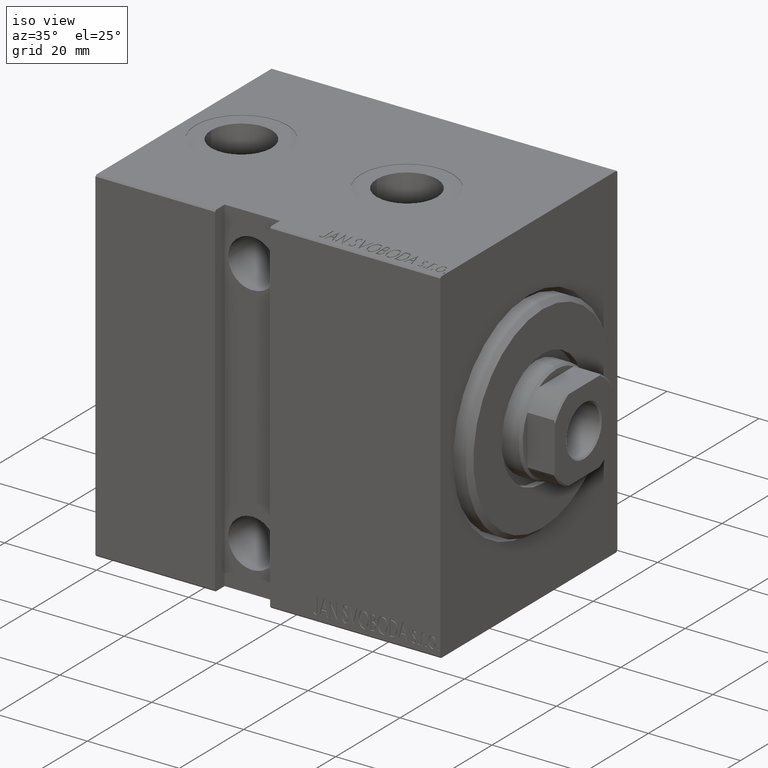
[diagram: clean part render]
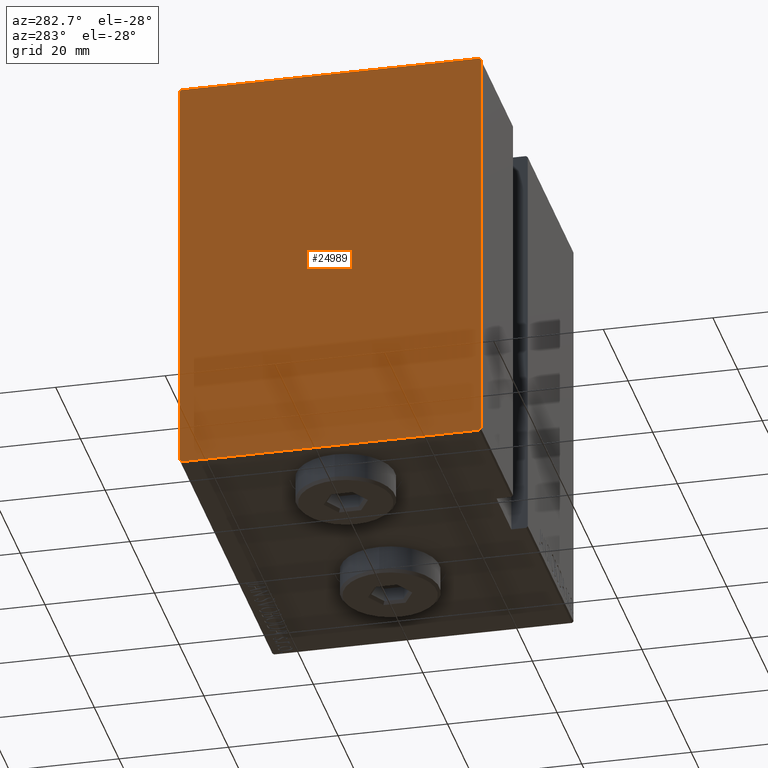
[diagram: tour spotlight — one face highlighted and labeled with its STEP entity id]
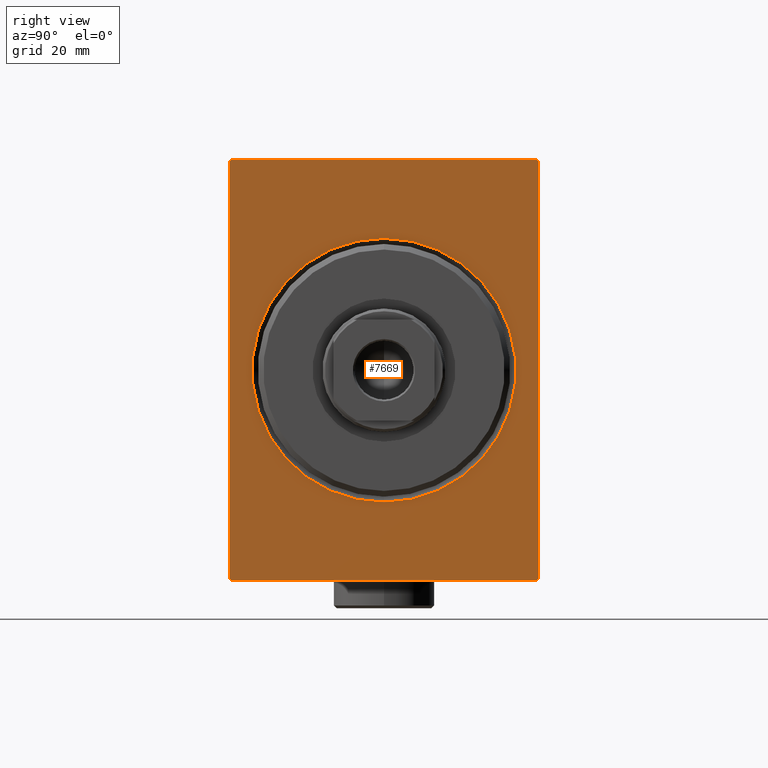
[diagram: tour spotlight — one face highlighted and labeled with its STEP entity id]
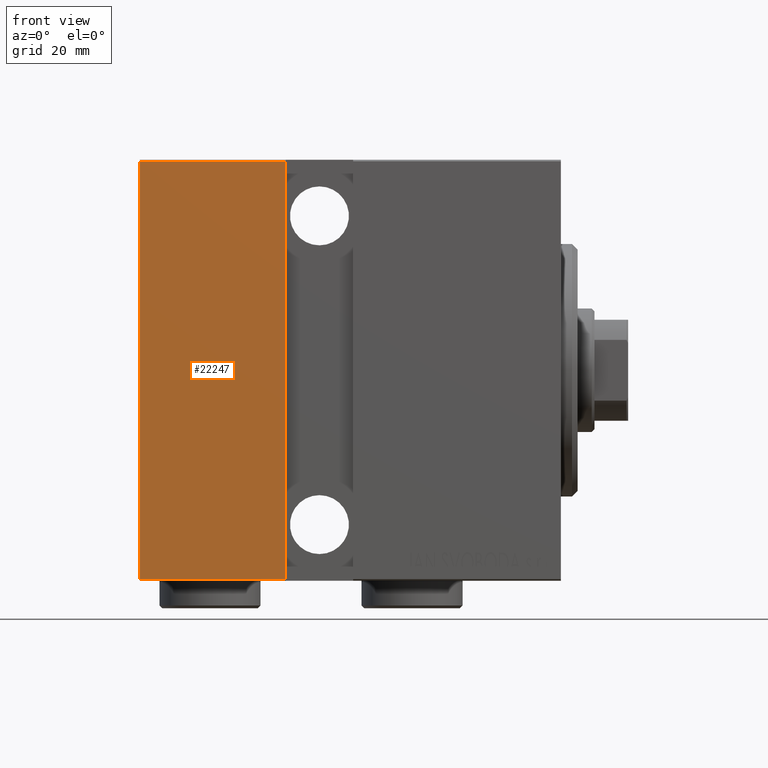
[diagram: tour spotlight — one face highlighted and labeled with its STEP entity id]
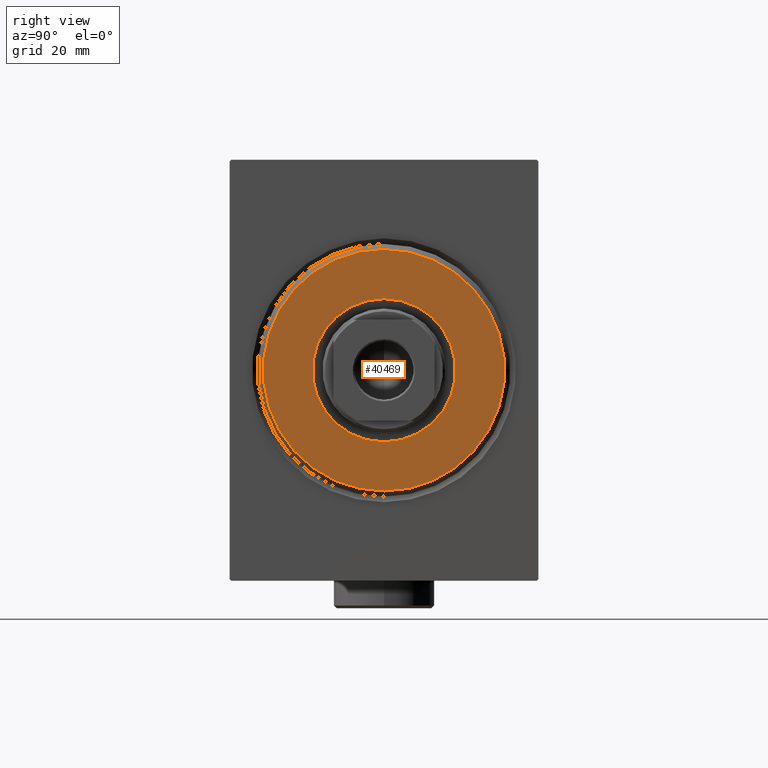
[diagram: tour spotlight — one face highlighted and labeled with its STEP entity id]
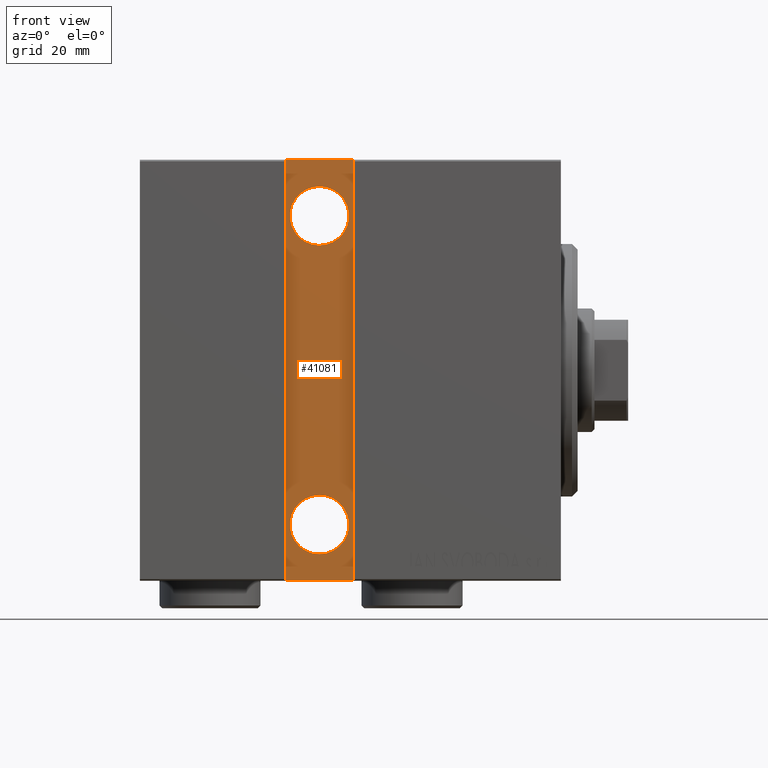
[diagram: tour spotlight — one face highlighted and labeled with its STEP entity id]
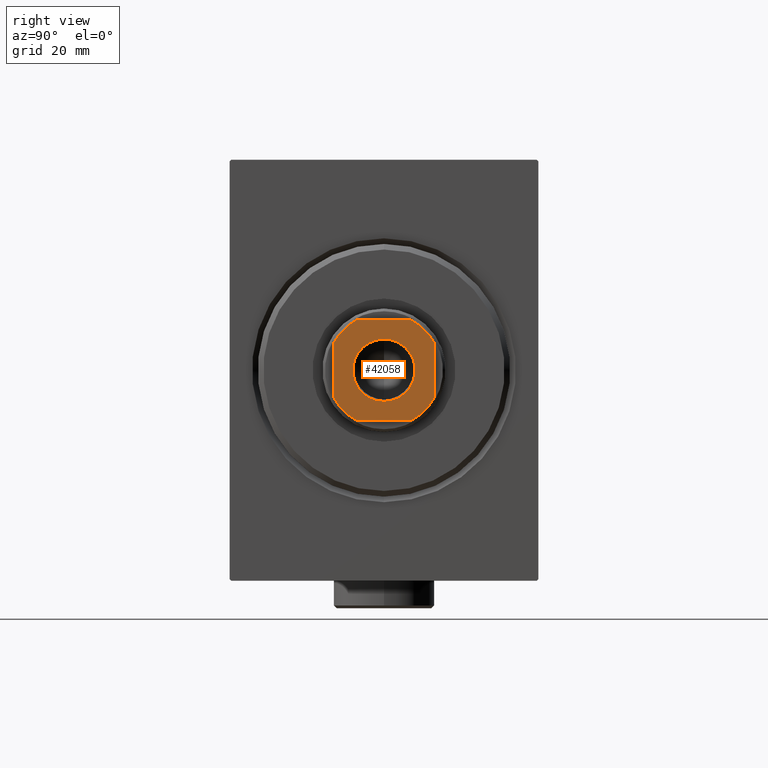
[diagram: tour spotlight — one face highlighted and labeled with its STEP entity id]
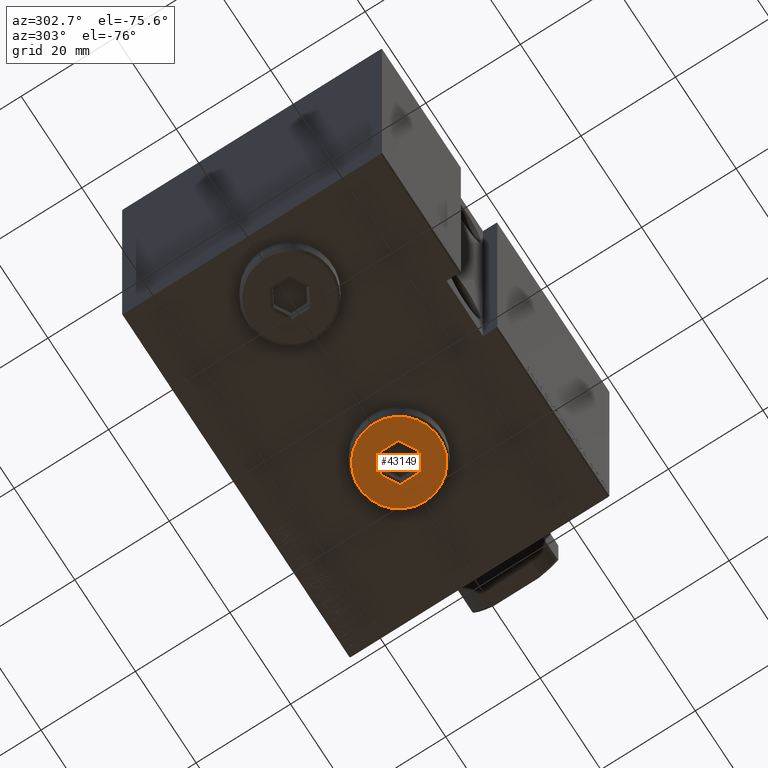
[diagram: tour spotlight — one face highlighted and labeled with its STEP entity id]
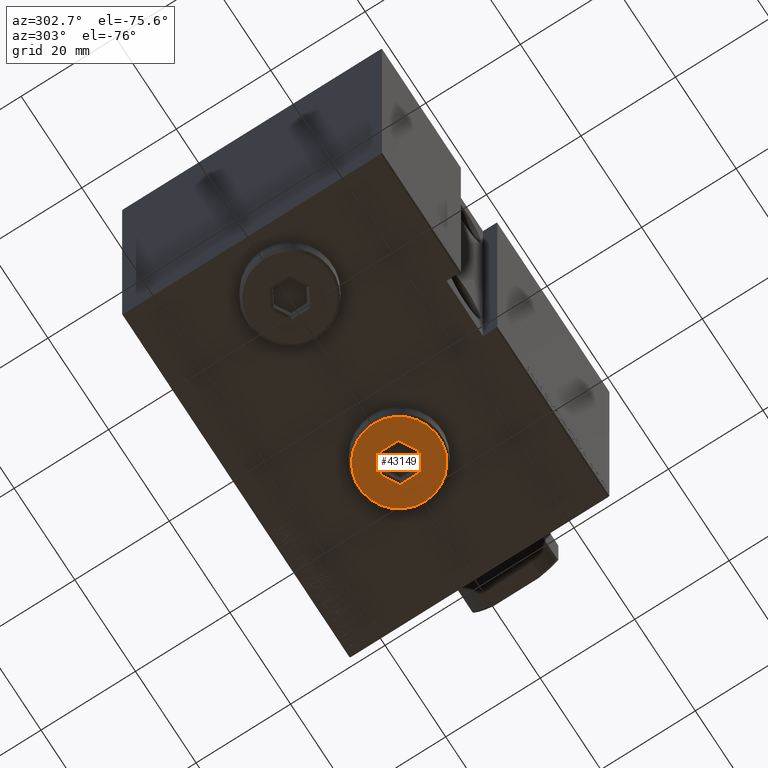
[diagram: tour spotlight — one face highlighted and labeled with its STEP entity id]
A machine part: a face-by-face anatomy tour. The part has 899 B-rep faces; the first image is the clean iso view, then the 8 largest visible faces are spotlighted one at a time (largest first), each with its STEP entity span.

Face 1 — auxiliary view, entity #24989. In plain terms, the highlighted planar face has unit normal (-1, 0, 0).
Definition (entity closure, byte-faithful):
#323 = EDGE_CURVE ( 'NONE', #3491, #2317, #7108, .T. ) ;
#533 = VERTEX_POINT ( 'NONE', #12212 ) ;
#778 = VECTOR ( 'NONE', #27568, 1000.000000000000000 ) ;
#1987 = EDGE_LOOP ( 'NONE', ( #16217, #25225, #13114, #41157, #22673, #15896, #40579, #12944 ) ) ;
#2317 = VERTEX_POINT ( 'NONE', #41379 ) ;
#2359 = DIRECTION ( 'NONE',  ( 0.000000000000000000, 0.000000000000000000, -1.000000000000000000 ) ) ;
#3177 = DIRECTION ( 'NONE',  ( -0.000000000000000000, 0.7071067811865474617, -0.7071067811865474617 ) ) ;
#3491 = VERTEX_POINT ( 'NONE', #28227 ) ;
#3593 = CARTESIAN_POINT ( 'NONE',  ( 75.00000000000000000, -27.19999999999999218, -37.50000000000000711 ) ) ;
#6331 = DIRECTION ( 'NONE',  ( 1.000000000000000000, 0.000000000000000000, 0.000000000000000000 ) ) ;
#6527 = EDGE_CURVE ( 'NONE', #12179, #533, #43729, .T. ) ;
#7108 = LINE ( 'NONE', #24010, #778 ) ;
#7871 = VERTEX_POINT ( 'NONE', #13637 ) ;
#9030 = CARTESIAN_POINT ( 'NONE',  ( 75.00000000000000000, 0.000000000000000000, 0.000000000000000000 ) ) ;
#9429 = CARTESIAN_POINT ( 'NONE',  ( 75.00000000000000000, -32.34999999999999432, -32.34999999999999432 ) ) ;
#9618 = LINE ( 'NONE', #36955, #20841 ) ;
#10419 = CARTESIAN_POINT ( 'NONE',  ( 75.00000000000000000, -27.50000000000000000, 37.49999999999999289 ) ) ;
#10889 = EDGE_CURVE ( 'NONE', #17823, #12179, #17668, .T. ) ;
#12179 = VERTEX_POINT ( 'NONE', #16668 ) ;
#12212 = CARTESIAN_POINT ( 'NONE',  ( 75.00000000000000000, -27.50000000000000000, 37.19999999999999574 ) ) ;
#12626 = DIRECTION ( 'NONE',  ( -0.000000000000000000, 0.7071067811865434649, 0.7071067811865516806 ) ) ;
#12898 = VECTOR ( 'NONE', #12626, 1000.000000000000000 ) ;
#12944 = ORIENTED_EDGE ( 'NONE', *, *, #35090, .T. ) ;
#13114 = ORIENTED_EDGE ( 'NONE', *, *, #323, .T. ) ;
#13637 = CARTESIAN_POINT ( 'NONE',  ( 75.00000000000000000, 27.19999999999999929, -37.50000000000000711 ) ) ;
#13816 = EDGE_CURVE ( 'NONE', #2317, #17823, #9618, .T. ) ;
#14981 = LINE ( 'NONE', #28535, #36127 ) ;
#15896 = ORIENTED_EDGE ( 'NONE', *, *, #6527, .T. ) ;
#15955 = LINE ( 'NONE', #29730, #12898 ) ;
#16217 = ORIENTED_EDGE ( 'NONE', *, *, #33080, .T. ) ;
#16351 = PLANE ( 'NONE',  #22461 ) ;
#16668 = CARTESIAN_POINT ( 'NONE',  ( 75.00000000000000000, -27.20000000000000284, 37.49999999999999289 ) ) ;
#17486 = VERTEX_POINT ( 'NONE', #3593 ) ;
#17542 = DIRECTION ( 'NONE',  ( 0.000000000000000000, 0.000000000000000000, -1.000000000000000000 ) ) ;
#17668 = LINE ( 'NONE', #20565, #26520 ) ;
#17823 = VERTEX_POINT ( 'NONE', #24841 ) ;
#19915 = FACE_OUTER_BOUND ( 'NONE', #1987, .T. ) ;
#20266 = VERTEX_POINT ( 'NONE', #22815 ) ;
#20565 = CARTESIAN_POINT ( 'NONE',  ( 75.00000000000000000, 27.49999999999999645, 37.50000000000000711 ) ) ;
#20575 = VECTOR ( 'NONE', #3177, 1000.000000000000114 ) ;
#20841 = VECTOR ( 'NONE', #29847, 1000.000000000000114 ) ;
#22461 = AXIS2_PLACEMENT_3D ( 'NONE', #9030, #6331, #2359 ) ;
#22673 = ORIENTED_EDGE ( 'NONE', *, *, #10889, .T. ) ;
#22815 = CARTESIAN_POINT ( 'NONE',  ( 75.00000000000000000, -27.50000000000000000, -37.19999999999999574 ) ) ;
#22881 = CARTESIAN_POINT ( 'NONE',  ( 75.00000000000000000, -32.34999999999983800, 32.35000000000021458 ) ) ;
#24010 = CARTESIAN_POINT ( 'NONE',  ( 75.00000000000000000, 27.50000000000000355, -37.50000000000000711 ) ) ;
#24249 = VECTOR ( 'NONE', #17542, 1000.000000000000000 ) ;
#24841 = CARTESIAN_POINT ( 'NONE',  ( 75.00000000000000000, 27.20000000000000284, 37.50000000000000711 ) ) ;
#24989 = ADVANCED_FACE ( 'NONE', ( #19915 ), #16351, .T. ) ;
#25013 = VECTOR ( 'NONE', #33526, 999.9999999999998863 ) ;
#25225 = ORIENTED_EDGE ( 'NONE', *, *, #43799, .T. ) ;
#26520 = VECTOR ( 'NONE', #34779, 1000.000000000000000 ) ;
#27568 = DIRECTION ( 'NONE',  ( 0.000000000000000000, -9.251858538542970348E-17, 1.000000000000000000 ) ) ;
#28227 = CARTESIAN_POINT ( 'NONE',  ( 75.00000000000000000, 27.50000000000000355, -37.19999999999999574 ) ) ;
#28535 = CARTESIAN_POINT ( 'NONE',  ( 75.00000000000000000, -27.50000000000000000, -37.50000000000000711 ) ) ;
#29730 = CARTESIAN_POINT ( 'NONE',  ( 75.00000000000000000, 32.35000000000016485, -32.34999999999978826 ) ) ;
#29847 = DIRECTION ( 'NONE',  ( -0.000000000000000000, -0.7071067811865474617, 0.7071067811865474617 ) ) ;
#31437 = DIRECTION ( 'NONE',  ( 0.000000000000000000, 1.000000000000000000, 0.000000000000000000 ) ) ;
#33080 = EDGE_CURVE ( 'NONE', #17486, #7871, #14981, .T. ) ;
#33526 = DIRECTION ( 'NONE',  ( 0.000000000000000000, -0.7071067811865515695, -0.7071067811865435759 ) ) ;
#34779 = DIRECTION ( 'NONE',  ( 0.000000000000000000, -1.000000000000000000, -2.523234146875355998E-16 ) ) ;
#35090 = EDGE_CURVE ( 'NONE', #20266, #17486, #39877, .T. ) ;
#36127 = VECTOR ( 'NONE', #31437, 1000.000000000000000 ) ;
#36955 = CARTESIAN_POINT ( 'NONE',  ( 75.00000000000000000, 32.35000000000000142, 32.35000000000000142 ) ) ;
#37536 = LINE ( 'NONE', #10419, #24249 ) ;
#39877 = LINE ( 'NONE', #9429, #20575 ) ;
#40579 = ORIENTED_EDGE ( 'NONE', *, *, #43688, .T. ) ;
#41157 = ORIENTED_EDGE ( 'NONE', *, *, #13816, .T. ) ;
#41379 = CARTESIAN_POINT ( 'NONE',  ( 75.00000000000000000, 27.49999999999999645, 37.20000000000000995 ) ) ;
#43688 = EDGE_CURVE ( 'NONE', #533, #20266, #37536, .T. ) ;
#43729 = LINE ( 'NONE', #22881, #25013 ) ;
#43799 = EDGE_CURVE ( 'NONE', #7871, #3491, #15955, .T. ) ;

Face 2 — right view, entity #7669. In plain terms, the highlighted planar face has unit normal (-1, 0, 0).
Definition (entity closure, byte-faithful):
#646 = EDGE_LOOP ( 'NONE', ( #16338, #31037, #27357, #43238, #33161, #28543, #31788, #4761 ) ) ;
#996 = DIRECTION ( 'NONE',  ( 0.000000000000000000, 0.000000000000000000, -1.000000000000000000 ) ) ;
#1650 = EDGE_CURVE ( 'NONE', #20695, #28960, #3248, .T. ) ;
#1655 = CARTESIAN_POINT ( 'NONE',  ( 0.000000000000000000, 27.50000000000000355, -37.50000000000000711 ) ) ;
#1658 = FACE_BOUND ( 'NONE', #16001, .T. ) ;
#1931 = VERTEX_POINT ( 'NONE', #10757 ) ;
#2647 = LINE ( 'NONE', #12440, #15703 ) ;
#2825 = VECTOR ( 'NONE', #42169, 1000.000000000000000 ) ;
#3248 = LINE ( 'NONE', #26609, #42595 ) ;
#4506 = EDGE_CURVE ( 'NONE', #1931, #28960, #2647, .T. ) ;
#4761 = ORIENTED_EDGE ( 'NONE', *, *, #43744, .T. ) ;
#5940 = CARTESIAN_POINT ( 'NONE',  ( 0.000000000000000000, -27.50000000000000000, 37.49999999999999289 ) ) ;
#6391 = CARTESIAN_POINT ( 'NONE',  ( 0.000000000000000000, 27.19999999999999929, -37.50000000000000711 ) ) ;
#6731 = VERTEX_POINT ( 'NONE', #13623 ) ;
#6837 = DIRECTION ( 'NONE',  ( -0.000000000000000000, 0.7071067811865474617, -0.7071067811865474617 ) ) ;
#7669 = ADVANCED_FACE ( 'NONE', ( #1658, #35683 ), #35237, .F. ) ;
#7950 = CARTESIAN_POINT ( 'NONE',  ( 0.000000000000000000, 27.49999999999999645, 37.50000000000000711 ) ) ;
#8548 = CARTESIAN_POINT ( 'NONE',  ( 0.000000000000000000, 0.000000000000000000, 0.000000000000000000 ) ) ;
#9625 = CARTESIAN_POINT ( 'NONE',  ( 0.000000000000000000, -27.20000000000000284, 37.49999999999999289 ) ) ;
#10092 = CARTESIAN_POINT ( 'NONE',  ( 0.000000000000000000, 0.000000000000000000, 23.50000000000000355 ) ) ;
#10757 = CARTESIAN_POINT ( 'NONE',  ( 0.000000000000000000, -27.19999999999999218, -37.50000000000000711 ) ) ;
#12332 = DIRECTION ( 'NONE',  ( 0.000000000000000000, -9.251858538542970348E-17, 1.000000000000000000 ) ) ;
#12440 = CARTESIAN_POINT ( 'NONE',  ( 0.000000000000000000, -27.50000000000000000, -37.50000000000000711 ) ) ;
#12698 = ORIENTED_EDGE ( 'NONE', *, *, #29164, .T. ) ;
#13068 = VERTEX_POINT ( 'NONE', #31770 ) ;
#13582 = VECTOR ( 'NONE', #22860, 1000.000000000000000 ) ;
#13623 = CARTESIAN_POINT ( 'NONE',  ( 0.000000000000000000, -27.50000000000000000, 37.19999999999999574 ) ) ;
#14742 = CIRCLE ( 'NONE', #15473, 23.50000000000000355 ) ;
#15290 = LINE ( 'NONE', #7950, #2825 ) ;
#15473 = AXIS2_PLACEMENT_3D ( 'NONE', #17243, #23471, #17019 ) ;
#15703 = VECTOR ( 'NONE', #26219, 1000.000000000000000 ) ;
#16001 = EDGE_LOOP ( 'NONE', ( #12698, #19512 ) ) ;
#16338 = ORIENTED_EDGE ( 'NONE', *, *, #39643, .F. ) ;
#16390 = CARTESIAN_POINT ( 'NONE',  ( 0.000000000000000000, -27.50000000000000000, 37.19999999999999574 ) ) ;
#16769 = AXIS2_PLACEMENT_3D ( 'NONE', #17720, #20402, #31270 ) ;
#16828 = DIRECTION ( 'NONE',  ( 0.000000000000000000, -0.7071067811865434649, -0.7071067811865516806 ) ) ;
#16926 = VECTOR ( 'NONE', #30634, 1000.000000000000114 ) ;
#17012 = VECTOR ( 'NONE', #6837, 1000.000000000000114 ) ;
#17019 = DIRECTION ( 'NONE',  ( 0.000000000000000000, 0.000000000000000000, -1.000000000000000000 ) ) ;
#17081 = CARTESIAN_POINT ( 'NONE',  ( 0.000000000000000000, -27.19999999999999218, -37.50000000000000711 ) ) ;
#17243 = CARTESIAN_POINT ( 'NONE',  ( 0.000000000000000000, 0.000000000000000000, 0.000000000000000000 ) ) ;
#17417 = VERTEX_POINT ( 'NONE', #9625 ) ;
#17720 = CARTESIAN_POINT ( 'NONE',  ( 0.000000000000000000, 0.000000000000000000, 0.000000000000000000 ) ) ;
#19158 = CARTESIAN_POINT ( 'NONE',  ( 0.000000000000000000, 2.877919977996280715E-15, -23.50000000000000355 ) ) ;
#19512 = ORIENTED_EDGE ( 'NONE', *, *, #20138, .T. ) ;
#20138 = EDGE_CURVE ( 'NONE', #33575, #27077, #35215, .T. ) ;
#20402 = DIRECTION ( 'NONE',  ( 1.000000000000000000, 0.000000000000000000, 0.000000000000000000 ) ) ;
#20695 = VERTEX_POINT ( 'NONE', #38220 ) ;
#22339 = LINE ( 'NONE', #1655, #38180 ) ;
#22860 = DIRECTION ( 'NONE',  ( 0.000000000000000000, 0.000000000000000000, -1.000000000000000000 ) ) ;
#23471 = DIRECTION ( 'NONE',  ( 1.000000000000000000, 0.000000000000000000, 0.000000000000000000 ) ) ;
#25455 = DIRECTION ( 'NONE',  ( 1.000000000000000000, 0.000000000000000000, 0.000000000000000000 ) ) ;
#26184 = DIRECTION ( 'NONE',  ( -0.000000000000000000, 0.7071067811865515695, 0.7071067811865435759 ) ) ;
#26219 = DIRECTION ( 'NONE',  ( 0.000000000000000000, 1.000000000000000000, 0.000000000000000000 ) ) ;
#26609 = CARTESIAN_POINT ( 'NONE',  ( 0.000000000000000000, 27.50000000000000355, -37.19999999999999574 ) ) ;
#26861 = LINE ( 'NONE', #17081, #16926 ) ;
#27077 = VERTEX_POINT ( 'NONE', #10092 ) ;
#27357 = ORIENTED_EDGE ( 'NONE', *, *, #29325, .F. ) ;
#28543 = ORIENTED_EDGE ( 'NONE', *, *, #30666, .T. ) ;
#28960 = VERTEX_POINT ( 'NONE', #6391 ) ;
#29164 = EDGE_CURVE ( 'NONE', #27077, #33575, #14742, .T. ) ;
#29325 = EDGE_CURVE ( 'NONE', #20695, #13068, #22339, .T. ) ;
#30634 = DIRECTION ( 'NONE',  ( -0.000000000000000000, -0.7071067811865474617, 0.7071067811865474617 ) ) ;
#30666 = EDGE_CURVE ( 'NONE', #1931, #38803, #26861, .T. ) ;
#30715 = AXIS2_PLACEMENT_3D ( 'NONE', #8548, #25455, #996 ) ;
#31037 = ORIENTED_EDGE ( 'NONE', *, *, #34538, .T. ) ;
#31270 = DIRECTION ( 'NONE',  ( 0.000000000000000000, 0.000000000000000000, -1.000000000000000000 ) ) ;
#31770 = CARTESIAN_POINT ( 'NONE',  ( 0.000000000000000000, 27.49999999999999645, 37.20000000000000995 ) ) ;
#31788 = ORIENTED_EDGE ( 'NONE', *, *, #43830, .F. ) ;
#33161 = ORIENTED_EDGE ( 'NONE', *, *, #4506, .F. ) ;
#33511 = CARTESIAN_POINT ( 'NONE',  ( 0.000000000000000000, 27.20000000000000284, 37.50000000000000711 ) ) ;
#33575 = VERTEX_POINT ( 'NONE', #19158 ) ;
#34538 = EDGE_CURVE ( 'NONE', #36737, #13068, #40403, .T. ) ;
#35215 = CIRCLE ( 'NONE', #16769, 23.50000000000000355 ) ;
#35237 = PLANE ( 'NONE',  #30715 ) ;
#35683 = FACE_OUTER_BOUND ( 'NONE', #646, .T. ) ;
#36737 = VERTEX_POINT ( 'NONE', #33511 ) ;
#38180 = VECTOR ( 'NONE', #12332, 1000.000000000000000 ) ;
#38220 = CARTESIAN_POINT ( 'NONE',  ( 0.000000000000000000, 27.50000000000000355, -37.19999999999999574 ) ) ;
#38803 = VERTEX_POINT ( 'NONE', #39653 ) ;
#39643 = EDGE_CURVE ( 'NONE', #36737, #17417, #15290, .T. ) ;
#39653 = CARTESIAN_POINT ( 'NONE',  ( 0.000000000000000000, -27.50000000000000000, -37.19999999999999574 ) ) ;
#40403 = LINE ( 'NONE', #43313, #17012 ) ;
#42169 = DIRECTION ( 'NONE',  ( 0.000000000000000000, -1.000000000000000000, -2.523234146875355998E-16 ) ) ;
#42595 = VECTOR ( 'NONE', #16828, 1000.000000000000000 ) ;
#43063 = LINE ( 'NONE', #16390, #43400 ) ;
#43238 = ORIENTED_EDGE ( 'NONE', *, *, #1650, .T. ) ;
#43313 = CARTESIAN_POINT ( 'NONE',  ( 0.000000000000000000, 27.20000000000000284, 37.50000000000000711 ) ) ;
#43400 = VECTOR ( 'NONE', #26184, 999.9999999999998863 ) ;
#43706 = LINE ( 'NONE', #5940, #13582 ) ;
#43744 = EDGE_CURVE ( 'NONE', #6731, #17417, #43063, .T. ) ;
#43830 = EDGE_CURVE ( 'NONE', #6731, #38803, #43706, .T. ) ;

Face 3 — front view, entity #22247. In plain terms, the highlighted planar face has unit normal (-0, 1, -0).
Definition (entity closure, byte-faithful):
#323 = EDGE_CURVE ( 'NONE', #3491, #2317, #7108, .T. ) ;
#453 = EDGE_LOOP ( 'NONE', ( #41453, #29637, #25014, #18950 ) ) ;
#778 = VECTOR ( 'NONE', #27568, 1000.000000000000000 ) ;
#1096 = EDGE_CURVE ( 'NONE', #7765, #2317, #22579, .T. ) ;
#2317 = VERTEX_POINT ( 'NONE', #41379 ) ;
#3322 = CARTESIAN_POINT ( 'NONE',  ( 75.00000000000000000, 27.50000000000000355, -37.19999999999999574 ) ) ;
#3491 = VERTEX_POINT ( 'NONE', #28227 ) ;
#5653 = CARTESIAN_POINT ( 'NONE',  ( 75.00000000000000000, 27.49999999999999645, 37.20000000000000995 ) ) ;
#6226 = EDGE_CURVE ( 'NONE', #3491, #29443, #6663, .T. ) ;
#6663 = LINE ( 'NONE', #3322, #27089 ) ;
#7108 = LINE ( 'NONE', #24010, #778 ) ;
#7765 = VERTEX_POINT ( 'NONE', #23001 ) ;
#7935 = DIRECTION ( 'NONE',  ( -9.251858538542978977E-17, -0.000000000000000000, -1.000000000000000000 ) ) ;
#10285 = VECTOR ( 'NONE', #7935, 1000.000000000000000 ) ;
#10754 = VECTOR ( 'NONE', #40316, 1000.000000000000000 ) ;
#11377 = PLANE ( 'NONE',  #28163 ) ;
#11597 = DIRECTION ( 'NONE',  ( 0.000000000000000000, 9.251858538542970348E-17, -1.000000000000000000 ) ) ;
#14607 = CARTESIAN_POINT ( 'NONE',  ( 48.99999999999999289, 27.50000000000000000, -37.50000000000000711 ) ) ;
#14942 = FACE_OUTER_BOUND ( 'NONE', #453, .T. ) ;
#16902 = EDGE_CURVE ( 'NONE', #7765, #29443, #31943, .T. ) ;
#18289 = DIRECTION ( 'NONE',  ( 0.000000000000000000, -1.000000000000000000, -9.251858538542970348E-17 ) ) ;
#18950 = ORIENTED_EDGE ( 'NONE', *, *, #1096, .T. ) ;
#22247 = ADVANCED_FACE ( 'NONE', ( #14942 ), #11377, .F. ) ;
#22579 = LINE ( 'NONE', #5653, #10754 ) ;
#23001 = CARTESIAN_POINT ( 'NONE',  ( 49.00000000000000000, 27.50000000000000000, 37.20000000000000995 ) ) ;
#24010 = CARTESIAN_POINT ( 'NONE',  ( 75.00000000000000000, 27.50000000000000355, -37.50000000000000711 ) ) ;
#25014 = ORIENTED_EDGE ( 'NONE', *, *, #16902, .F. ) ;
#27089 = VECTOR ( 'NONE', #43353, 1000.000000000000000 ) ;
#27568 = DIRECTION ( 'NONE',  ( 0.000000000000000000, -9.251858538542970348E-17, 1.000000000000000000 ) ) ;
#28163 = AXIS2_PLACEMENT_3D ( 'NONE', #31615, #18289, #11597 ) ;
#28227 = CARTESIAN_POINT ( 'NONE',  ( 75.00000000000000000, 27.50000000000000355, -37.19999999999999574 ) ) ;
#29443 = VERTEX_POINT ( 'NONE', #34307 ) ;
#29637 = ORIENTED_EDGE ( 'NONE', *, *, #6226, .T. ) ;
#31615 = CARTESIAN_POINT ( 'NONE',  ( 75.00000000000000000, 27.50000000000000355, -37.50000000000000711 ) ) ;
#31943 = LINE ( 'NONE', #14607, #10285 ) ;
#34307 = CARTESIAN_POINT ( 'NONE',  ( 48.99999999999999289, 27.50000000000000000, -37.19999999999999574 ) ) ;
#40316 = DIRECTION ( 'NONE',  ( 1.000000000000000000, 0.000000000000000000, 0.000000000000000000 ) ) ;
#41379 = CARTESIAN_POINT ( 'NONE',  ( 75.00000000000000000, 27.49999999999999645, 37.20000000000000995 ) ) ;
#41453 = ORIENTED_EDGE ( 'NONE', *, *, #323, .F. ) ;
#43353 = DIRECTION ( 'NONE',  ( -1.000000000000000000, 0.000000000000000000, 0.000000000000000000 ) ) ;

Face 4 — right view, entity #40469. In plain terms, the highlighted planar face has unit normal (1, 0, 0).
Definition (entity closure, byte-faithful):
#936 = AXIS2_PLACEMENT_3D ( 'NONE', #18932, #6010, #16239 ) ;
#1279 = ORIENTED_EDGE ( 'NONE', *, *, #14928, .T. ) ;
#3517 = VERTEX_POINT ( 'NONE', #19332 ) ;
#5188 = CIRCLE ( 'NONE', #27894, 21.49999999999998579 ) ;
#5222 = DIRECTION ( 'NONE',  ( 0.000000000000000000, 0.000000000000000000, -1.000000000000000000 ) ) ;
#5245 = AXIS2_PLACEMENT_3D ( 'NONE', #26752, #40301, #40743 ) ;
#5494 = FACE_OUTER_BOUND ( 'NONE', #13800, .T. ) ;
#5715 = CARTESIAN_POINT ( 'NONE',  ( 3.000000000000000000, 0.000000000000000000, 0.000000000000000000 ) ) ;
#6010 = DIRECTION ( 'NONE',  ( -1.000000000000000000, 0.000000000000000000, -0.000000000000000000 ) ) ;
#6599 = ORIENTED_EDGE ( 'NONE', *, *, #8631, .T. ) ;
#8552 = VERTEX_POINT ( 'NONE', #36129 ) ;
#8631 = EDGE_CURVE ( 'NONE', #30348, #30050, #16497, .T. ) ;
#9916 = EDGE_CURVE ( 'NONE', #30050, #30348, #5188, .T. ) ;
#10999 = EDGE_CURVE ( 'NONE', #8552, #3517, #27925, .T. ) ;
#11961 = PLANE ( 'NONE',  #40444 ) ;
#13165 = CARTESIAN_POINT ( 'NONE',  ( 3.000000000000000000, 0.000000000000000000, 0.000000000000000000 ) ) ;
#13800 = EDGE_LOOP ( 'NONE', ( #6599, #28952 ) ) ;
#14186 = CARTESIAN_POINT ( 'NONE',  ( 3.000000000000000000, 2.694222958124176415E-15, -21.49999999999998579 ) ) ;
#14928 = EDGE_CURVE ( 'NONE', #3517, #8552, #43570, .T. ) ;
#15732 = FACE_BOUND ( 'NONE', #18436, .T. ) ;
#16239 = DIRECTION ( 'NONE',  ( 0.000000000000000000, 0.000000000000000000, -1.000000000000000000 ) ) ;
#16497 = CIRCLE ( 'NONE', #41338, 21.49999999999998579 ) ;
#18311 = CARTESIAN_POINT ( 'NONE',  ( 3.000000000000000000, 0.000000000000000000, 21.49999999999998579 ) ) ;
#18436 = EDGE_LOOP ( 'NONE', ( #41405, #1279 ) ) ;
#18932 = CARTESIAN_POINT ( 'NONE',  ( 3.000000000000000000, 0.000000000000000000, 0.000000000000000000 ) ) ;
#19240 = DIRECTION ( 'NONE',  ( 1.000000000000000000, -0.000000000000000000, 0.000000000000000000 ) ) ;
#19332 = CARTESIAN_POINT ( 'NONE',  ( 3.000000000000000000, 1.561424668912874914E-15, -12.75000000000000000 ) ) ;
#19685 = CARTESIAN_POINT ( 'NONE',  ( 3.000000000000000000, 0.000000000000000000, 0.000000000000000000 ) ) ;
#22413 = DIRECTION ( 'NONE',  ( 0.000000000000000000, 0.000000000000000000, -1.000000000000000000 ) ) ;
#26752 = CARTESIAN_POINT ( 'NONE',  ( 3.000000000000000000, 0.000000000000000000, 0.000000000000000000 ) ) ;
#27894 = AXIS2_PLACEMENT_3D ( 'NONE', #13165, #40933, #43820 ) ;
#27925 = CIRCLE ( 'NONE', #936, 12.75000000000000000 ) ;
#28952 = ORIENTED_EDGE ( 'NONE', *, *, #9916, .T. ) ;
#30050 = VERTEX_POINT ( 'NONE', #14186 ) ;
#30348 = VERTEX_POINT ( 'NONE', #18311 ) ;
#36129 = CARTESIAN_POINT ( 'NONE',  ( 3.000000000000000000, 0.000000000000000000, 12.75000000000000000 ) ) ;
#38634 = DIRECTION ( 'NONE',  ( 1.000000000000000000, -0.000000000000000000, 0.000000000000000000 ) ) ;
#40301 = DIRECTION ( 'NONE',  ( -1.000000000000000000, 0.000000000000000000, -0.000000000000000000 ) ) ;
#40444 = AXIS2_PLACEMENT_3D ( 'NONE', #5715, #38634, #22413 ) ;
#40469 = ADVANCED_FACE ( 'NONE', ( #5494, #15732 ), #11961, .T. ) ;
#40743 = DIRECTION ( 'NONE',  ( 0.000000000000000000, 0.000000000000000000, -1.000000000000000000 ) ) ;
#40933 = DIRECTION ( 'NONE',  ( 1.000000000000000000, -0.000000000000000000, 0.000000000000000000 ) ) ;
#41338 = AXIS2_PLACEMENT_3D ( 'NONE', #19685, #19240, #5222 ) ;
#41405 = ORIENTED_EDGE ( 'NONE', *, *, #10999, .T. ) ;
#43570 = CIRCLE ( 'NONE', #5245, 12.75000000000000000 ) ;
#43820 = DIRECTION ( 'NONE',  ( 0.000000000000000000, 0.000000000000000000, -1.000000000000000000 ) ) ;

Face 5 — front view, entity #41081. In plain terms, the highlighted planar face has unit normal (0, 1, 0).
Definition (entity closure, byte-faithful):
#15 = VECTOR ( 'NONE', #3603, 1000.000000000000000 ) ;
#367 = CIRCLE ( 'NONE', #6161, 5.249999999999997335 ) ;
#517 = CARTESIAN_POINT ( 'NONE',  ( 0.000000000000000000, 24.50000000000000000, 0.000000000000000000 ) ) ;
#732 = DIRECTION ( 'NONE',  ( 0.000000000000000000, -0.000000000000000000, -1.000000000000000000 ) ) ;
#909 = ORIENTED_EDGE ( 'NONE', *, *, #41446, .T. ) ;
#1640 = VECTOR ( 'NONE', #43767, 1000.000000000000000 ) ;
#2037 = ORIENTED_EDGE ( 'NONE', *, *, #22100, .T. ) ;
#2147 = VERTEX_POINT ( 'NONE', #8958 ) ;
#3603 = DIRECTION ( 'NONE',  ( 1.000000000000000000, -0.000000000000000000, -0.000000000000000000 ) ) ;
#3706 = VERTEX_POINT ( 'NONE', #9944 ) ;
#4273 = CARTESIAN_POINT ( 'NONE',  ( 43.00000000000001421, 24.50000000000000000, 32.74999999999999289 ) ) ;
#4490 = VECTOR ( 'NONE', #30555, 1000.000000000000000 ) ;
#4552 = EDGE_CURVE ( 'NONE', #4770, #15858, #33448, .T. ) ;
#4770 = VERTEX_POINT ( 'NONE', #35739 ) ;
#5272 = EDGE_LOOP ( 'NONE', ( #8013, #909, #18558, #27792 ) ) ;
#6161 = AXIS2_PLACEMENT_3D ( 'NONE', #34074, #43835, #30508 ) ;
#6519 = CIRCLE ( 'NONE', #39911, 5.249999999999997335 ) ;
#6735 = VERTEX_POINT ( 'NONE', #12153 ) ;
#6946 = CARTESIAN_POINT ( 'NONE',  ( 49.00000000000000000, 24.50000000000000000, 37.49999999999993605 ) ) ;
#7269 = LINE ( 'NONE', #20842, #34447 ) ;
#7419 = EDGE_CURVE ( 'NONE', #38959, #22049, #6519, .T. ) ;
#8013 = ORIENTED_EDGE ( 'NONE', *, *, #10853, .T. ) ;
#8958 = CARTESIAN_POINT ( 'NONE',  ( 37.00000000000000000, 24.50000000000000000, -37.50000000000000711 ) ) ;
#9249 = EDGE_CURVE ( 'NONE', #3706, #2147, #40431, .T. ) ;
#9944 = CARTESIAN_POINT ( 'NONE',  ( 49.00000000000000000, 24.50000000000000355, -37.50000000000000711 ) ) ;
#10609 = DIRECTION ( 'NONE',  ( 0.000000000000000000, 0.000000000000000000, -1.000000000000000000 ) ) ;
#10853 = EDGE_CURVE ( 'NONE', #2147, #6735, #31002, .T. ) ;
#11515 = EDGE_LOOP ( 'NONE', ( #20925, #20034 ) ) ;
#12153 = CARTESIAN_POINT ( 'NONE',  ( 37.00000000000001421, 24.50000000000000000, 37.49999999999993605 ) ) ;
#12517 = DIRECTION ( 'NONE',  ( 0.000000000000000000, -1.000000000000000000, 0.000000000000000000 ) ) ;
#13243 = CARTESIAN_POINT ( 'NONE',  ( 49.00000000000000000, 24.50000000000000000, 37.49999999999993605 ) ) ;
#14109 = CARTESIAN_POINT ( 'NONE',  ( 37.00000000000000000, 24.50000000000000000, -37.50000000000000711 ) ) ;
#14280 = AXIS2_PLACEMENT_3D ( 'NONE', #33321, #36864, #26858 ) ;
#14615 = EDGE_LOOP ( 'NONE', ( #21262, #2037 ) ) ;
#15858 = VERTEX_POINT ( 'NONE', #30584 ) ;
#16900 = EDGE_CURVE ( 'NONE', #29154, #3706, #7269, .T. ) ;
#18558 = ORIENTED_EDGE ( 'NONE', *, *, #16900, .T. ) ;
#19916 = AXIS2_PLACEMENT_3D ( 'NONE', #35649, #12517, #36079 ) ;
#20034 = ORIENTED_EDGE ( 'NONE', *, *, #36375, .T. ) ;
#20842 = CARTESIAN_POINT ( 'NONE',  ( 48.99999999999999289, 24.50000000000000000, -37.50000000000000711 ) ) ;
#20925 = ORIENTED_EDGE ( 'NONE', *, *, #4552, .T. ) ;
#21075 = DIRECTION ( 'NONE',  ( 0.000000000000000000, -1.000000000000000000, 0.000000000000000000 ) ) ;
#21262 = ORIENTED_EDGE ( 'NONE', *, *, #7419, .T. ) ;
#22049 = VERTEX_POINT ( 'NONE', #39430 ) ;
#22100 = EDGE_CURVE ( 'NONE', #22049, #38959, #367, .T. ) ;
#23659 = FACE_BOUND ( 'NONE', #11515, .T. ) ;
#23771 = CARTESIAN_POINT ( 'NONE',  ( 48.99999999999999289, 24.50000000000000000, -37.50000000000000711 ) ) ;
#24402 = CARTESIAN_POINT ( 'NONE',  ( 43.00000000000001421, 24.50000000000000000, 27.50000000000000000 ) ) ;
#26858 = DIRECTION ( 'NONE',  ( 0.000000000000000000, 0.000000000000000000, -1.000000000000000000 ) ) ;
#27650 = FACE_BOUND ( 'NONE', #14615, .T. ) ;
#27728 = DIRECTION ( 'NONE',  ( -9.251858538542978977E-17, -0.000000000000000000, -1.000000000000000000 ) ) ;
#27792 = ORIENTED_EDGE ( 'NONE', *, *, #9249, .T. ) ;
#29154 = VERTEX_POINT ( 'NONE', #13243 ) ;
#29829 = CIRCLE ( 'NONE', #19916, 5.249999999999994671 ) ;
#30508 = DIRECTION ( 'NONE',  ( 0.000000000000000000, 0.000000000000000000, -1.000000000000000000 ) ) ;
#30555 = DIRECTION ( 'NONE',  ( 1.850371707708595795E-16, 0.000000000000000000, 1.000000000000000000 ) ) ;
#30584 = CARTESIAN_POINT ( 'NONE',  ( 43.00000000000001421, 24.50000000000000000, -32.74999999999999289 ) ) ;
#30986 = FACE_OUTER_BOUND ( 'NONE', #5272, .T. ) ;
#31002 = LINE ( 'NONE', #14109, #4490 ) ;
#33321 = CARTESIAN_POINT ( 'NONE',  ( 43.00000000000001421, 24.50000000000000000, -27.50000000000000000 ) ) ;
#33448 = CIRCLE ( 'NONE', #14280, 5.249999999999994671 ) ;
#34074 = CARTESIAN_POINT ( 'NONE',  ( 43.00000000000001421, 24.50000000000000000, 27.50000000000000000 ) ) ;
#34447 = VECTOR ( 'NONE', #27728, 1000.000000000000000 ) ;
#34764 = PLANE ( 'NONE',  #40508 ) ;
#35649 = CARTESIAN_POINT ( 'NONE',  ( 43.00000000000001421, 24.50000000000000000, -27.50000000000000000 ) ) ;
#35739 = CARTESIAN_POINT ( 'NONE',  ( 43.00000000000001421, 24.50000000000000000, -22.25000000000000355 ) ) ;
#36079 = DIRECTION ( 'NONE',  ( 0.000000000000000000, 0.000000000000000000, -1.000000000000000000 ) ) ;
#36375 = EDGE_CURVE ( 'NONE', #15858, #4770, #29829, .T. ) ;
#36864 = DIRECTION ( 'NONE',  ( 0.000000000000000000, -1.000000000000000000, 0.000000000000000000 ) ) ;
#37212 = DIRECTION ( 'NONE',  ( 0.000000000000000000, -1.000000000000000000, 0.000000000000000000 ) ) ;
#37405 = LINE ( 'NONE', #6946, #15 ) ;
#38959 = VERTEX_POINT ( 'NONE', #4273 ) ;
#39430 = CARTESIAN_POINT ( 'NONE',  ( 43.00000000000001421, 24.50000000000000000, 22.25000000000000355 ) ) ;
#39911 = AXIS2_PLACEMENT_3D ( 'NONE', #24402, #21075, #10609 ) ;
#40431 = LINE ( 'NONE', #23771, #1640 ) ;
#40508 = AXIS2_PLACEMENT_3D ( 'NONE', #517, #37212, #732 ) ;
#41081 = ADVANCED_FACE ( 'NONE', ( #27650, #23659, #30986 ), #34764, .F. ) ;
#41446 = EDGE_CURVE ( 'NONE', #6735, #29154, #37405, .T. ) ;
#43767 = DIRECTION ( 'NONE',  ( -1.000000000000000000, 0.000000000000000000, 0.000000000000000000 ) ) ;
#43835 = DIRECTION ( 'NONE',  ( 0.000000000000000000, -1.000000000000000000, 0.000000000000000000 ) ) ;

Face 6 — right view, entity #42058. In plain terms, the highlighted planar face has unit normal (1, 0, -0).
Definition (entity closure, byte-faithful):
#593 = CIRCLE ( 'NONE', #9832, 10.19999999999999929 ) ;
#718 = AXIS2_PLACEMENT_3D ( 'NONE', #17700, #10797, #13920 ) ;
#2164 = CIRCLE ( 'NONE', #30560, 5.550000000000013145 ) ;
#2254 = ORIENTED_EDGE ( 'NONE', *, *, #31421, .T. ) ;
#2567 = DIRECTION ( 'NONE',  ( 1.000000000000000000, 0.000000000000000000, 0.000000000000000000 ) ) ;
#3760 = LINE ( 'NONE', #27343, #30645 ) ;
#4598 = FACE_BOUND ( 'NONE', #27240, .T. ) ;
#4817 = FACE_OUTER_BOUND ( 'NONE', #15390, .T. ) ;
#5043 = CARTESIAN_POINT ( 'NONE',  ( 0.000000000000000000, 0.000000000000000000, 77.00000000000001421 ) ) ;
#5147 = ORIENTED_EDGE ( 'NONE', *, *, #42607, .T. ) ;
#5265 = DIRECTION ( 'NONE',  ( -0.000000000000000000, 0.000000000000000000, 1.000000000000000000 ) ) ;
#5488 = CARTESIAN_POINT ( 'NONE',  ( -9.000000000000001776, 4.799999999999986500, 77.00000000000001421 ) ) ;
#6027 = CARTESIAN_POINT ( 'NONE',  ( 4.800000000000012257, 8.999999999999998224, 77.00000000000001421 ) ) ;
#6035 = VERTEX_POINT ( 'NONE', #25164 ) ;
#6107 = CARTESIAN_POINT ( 'NONE',  ( -5.550000000000013145, 6.796789735267826558E-16, 77.00000000000001421 ) ) ;
#6344 = EDGE_CURVE ( 'NONE', #15587, #6035, #3760, .T. ) ;
#7139 = AXIS2_PLACEMENT_3D ( 'NONE', #31290, #11942, #18398 ) ;
#8411 = EDGE_CURVE ( 'NONE', #6035, #29701, #31418, .T. ) ;
#8884 = DIRECTION ( 'NONE',  ( -0.000000000000000000, 0.000000000000000000, 1.000000000000000000 ) ) ;
#9020 = DIRECTION ( 'NONE',  ( 0.000000000000000000, -0.000000000000000000, -1.000000000000000000 ) ) ;
#9231 = ORIENTED_EDGE ( 'NONE', *, *, #29875, .T. ) ;
#9832 = AXIS2_PLACEMENT_3D ( 'NONE', #40864, #23759, #20657 ) ;
#10283 = CARTESIAN_POINT ( 'NONE',  ( 8.999999999999998224, 4.800000000000010481, 77.00000000000001421 ) ) ;
#10797 = DIRECTION ( 'NONE',  ( -0.000000000000000000, 0.000000000000000000, 1.000000000000000000 ) ) ;
#11395 = CIRCLE ( 'NONE', #718, 10.19999999999999396 ) ;
#11475 = CARTESIAN_POINT ( 'NONE',  ( -8.999999999999998224, -4.799999999999999822, 77.00000000000001421 ) ) ;
#11942 = DIRECTION ( 'NONE',  ( -0.000000000000000000, 0.000000000000000000, 1.000000000000000000 ) ) ;
#12555 = VERTEX_POINT ( 'NONE', #11475 ) ;
#13314 = DIRECTION ( 'NONE',  ( 0.000000000000000000, -0.000000000000000000, -1.000000000000000000 ) ) ;
#13920 = DIRECTION ( 'NONE',  ( 1.000000000000000000, 0.000000000000000000, 0.000000000000000000 ) ) ;
#14878 = ORIENTED_EDGE ( 'NONE', *, *, #27147, .T. ) ;
#15366 = LINE ( 'NONE', #19801, #43781 ) ;
#15390 = EDGE_LOOP ( 'NONE', ( #19626, #9231, #21620, #16802, #14878, #2254, #16559, #18744 ) ) ;
#15587 = VERTEX_POINT ( 'NONE', #17748 ) ;
#15699 = CARTESIAN_POINT ( 'NONE',  ( -9.000000000000001776, 8.999999999999998224, 77.00000000000001421 ) ) ;
#16559 = ORIENTED_EDGE ( 'NONE', *, *, #6344, .T. ) ;
#16802 = ORIENTED_EDGE ( 'NONE', *, *, #35811, .T. ) ;
#16893 = AXIS2_PLACEMENT_3D ( 'NONE', #39338, #8884, #22454 ) ;
#17070 = EDGE_CURVE ( 'NONE', #39178, #39765, #18614, .T. ) ;
#17407 = VECTOR ( 'NONE', #43245, 1000.000000000000000 ) ;
#17700 = CARTESIAN_POINT ( 'NONE',  ( 0.000000000000000000, 0.000000000000000000, 77.00000000000001421 ) ) ;
#17748 = CARTESIAN_POINT ( 'NONE',  ( -4.799999999999995381, -9.000000000000001776, 77.00000000000001421 ) ) ;
#18398 = DIRECTION ( 'NONE',  ( 1.000000000000000000, 0.000000000000000000, 0.000000000000000000 ) ) ;
#18614 = LINE ( 'NONE', #15699, #17407 ) ;
#18744 = ORIENTED_EDGE ( 'NONE', *, *, #8411, .T. ) ;
#18966 = VECTOR ( 'NONE', #41859, 1000.000000000000000 ) ;
#19248 = AXIS2_PLACEMENT_3D ( 'NONE', #32686, #13314, #23113 ) ;
#19626 = ORIENTED_EDGE ( 'NONE', *, *, #27465, .T. ) ;
#19801 = CARTESIAN_POINT ( 'NONE',  ( 8.999999999999998224, 8.999999999999998224, 77.00000000000001421 ) ) ;
#20657 = DIRECTION ( 'NONE',  ( 1.000000000000000000, 0.000000000000000000, 0.000000000000000000 ) ) ;
#21620 = ORIENTED_EDGE ( 'NONE', *, *, #17070, .T. ) ;
#21882 = CIRCLE ( 'NONE', #16893, 10.20000000000000462 ) ;
#22454 = DIRECTION ( 'NONE',  ( 1.000000000000000000, 0.000000000000000000, 0.000000000000000000 ) ) ;
#23113 = DIRECTION ( 'NONE',  ( 1.000000000000000000, 0.000000000000000000, 0.000000000000000000 ) ) ;
#23759 = DIRECTION ( 'NONE',  ( -0.000000000000000000, 0.000000000000000000, 1.000000000000000000 ) ) ;
#25164 = CARTESIAN_POINT ( 'NONE',  ( 4.800000000000006928, -9.000000000000001776, 77.00000000000001421 ) ) ;
#27147 = EDGE_CURVE ( 'NONE', #42938, #12555, #38312, .T. ) ;
#27240 = EDGE_LOOP ( 'NONE', ( #5147, #42947 ) ) ;
#27343 = CARTESIAN_POINT ( 'NONE',  ( -8.999999999999998224, -9.000000000000001776, 77.00000000000001421 ) ) ;
#27465 = EDGE_CURVE ( 'NONE', #29701, #34112, #15366, .T. ) ;
#29220 = CARTESIAN_POINT ( 'NONE',  ( 5.550000000000013145, 0.000000000000000000, 77.00000000000001421 ) ) ;
#29353 = VERTEX_POINT ( 'NONE', #29220 ) ;
#29701 = VERTEX_POINT ( 'NONE', #40251 ) ;
#29875 = EDGE_CURVE ( 'NONE', #34112, #39178, #21882, .T. ) ;
#29894 = CIRCLE ( 'NONE', #19248, 5.550000000000013145 ) ;
#30560 = AXIS2_PLACEMENT_3D ( 'NONE', #43232, #9020, #2567 ) ;
#30645 = VECTOR ( 'NONE', #30893, 1000.000000000000000 ) ;
#30893 = DIRECTION ( 'NONE',  ( 1.000000000000000000, 0.000000000000000000, 0.000000000000000000 ) ) ;
#31290 = CARTESIAN_POINT ( 'NONE',  ( 0.000000000000000000, 0.000000000000000000, 77.00000000000001421 ) ) ;
#31418 = CIRCLE ( 'NONE', #33535, 10.20000000000000462 ) ;
#31421 = EDGE_CURVE ( 'NONE', #12555, #15587, #593, .T. ) ;
#32184 = PLANE ( 'NONE',  #7139 ) ;
#32686 = CARTESIAN_POINT ( 'NONE',  ( 0.000000000000000000, 0.000000000000000000, 77.00000000000001421 ) ) ;
#33348 = DIRECTION ( 'NONE',  ( -1.927470528863119049E-16, 1.000000000000000000, -0.000000000000000000 ) ) ;
#33535 = AXIS2_PLACEMENT_3D ( 'NONE', #5043, #5265, #43265 ) ;
#34112 = VERTEX_POINT ( 'NONE', #10283 ) ;
#35811 = EDGE_CURVE ( 'NONE', #39765, #42938, #11395, .T. ) ;
#36964 = EDGE_CURVE ( 'NONE', #37066, #29353, #2164, .T. ) ;
#37066 = VERTEX_POINT ( 'NONE', #6107 ) ;
#38312 = LINE ( 'NONE', #42292, #18966 ) ;
#39178 = VERTEX_POINT ( 'NONE', #6027 ) ;
#39338 = CARTESIAN_POINT ( 'NONE',  ( 0.000000000000000000, 0.000000000000000000, 77.00000000000001421 ) ) ;
#39710 = CARTESIAN_POINT ( 'NONE',  ( -4.799999999999990941, 8.999999999999998224, 77.00000000000001421 ) ) ;
#39765 = VERTEX_POINT ( 'NONE', #39710 ) ;
#40251 = CARTESIAN_POINT ( 'NONE',  ( 9.000000000000001776, -4.800000000000007816, 77.00000000000001421 ) ) ;
#40864 = CARTESIAN_POINT ( 'NONE',  ( 0.000000000000000000, 0.000000000000000000, 77.00000000000001421 ) ) ;
#41859 = DIRECTION ( 'NONE',  ( 1.927470528863119049E-16, -1.000000000000000000, 0.000000000000000000 ) ) ;
#42058 = ADVANCED_FACE ( 'NONE', ( #4598, #4817 ), #32184, .T. ) ;
#42292 = CARTESIAN_POINT ( 'NONE',  ( -9.000000000000001776, 8.999999999999998224, 77.00000000000001421 ) ) ;
#42607 = EDGE_CURVE ( 'NONE', #29353, #37066, #29894, .T. ) ;
#42938 = VERTEX_POINT ( 'NONE', #5488 ) ;
#42947 = ORIENTED_EDGE ( 'NONE', *, *, #36964, .T. ) ;
#43232 = CARTESIAN_POINT ( 'NONE',  ( 0.000000000000000000, 0.000000000000000000, 77.00000000000001421 ) ) ;
#43245 = DIRECTION ( 'NONE',  ( -1.000000000000000000, -0.000000000000000000, -0.000000000000000000 ) ) ;
#43265 = DIRECTION ( 'NONE',  ( 1.000000000000000000, 0.000000000000000000, 0.000000000000000000 ) ) ;
#43781 = VECTOR ( 'NONE', #33348, 1000.000000000000000 ) ;

Face 7 — auxiliary view, entity #43149. In plain terms, the highlighted planar face has unit normal (-0, 0, -1).
Definition (entity closure, byte-faithful):
#112 = CARTESIAN_POINT ( 'NONE',  ( -1.006139216460143630E-15, -4.041451884327387667, 5.000000000000000000 ) ) ;
#1661 = CARTESIAN_POINT ( 'NONE',  ( -3.500000000000006661, 1.732050807568878081, 5.000000000000000000 ) ) ;
#2085 = CARTESIAN_POINT ( 'NONE',  ( -3.500000000000006661, 2.020725942163692945, 5.000000000000000000 ) ) ;
#4241 = VERTEX_POINT ( 'NONE', #2085 ) ;
#4558 = DIRECTION ( 'NONE',  ( 1.000000000000000000, 0.000000000000000000, -0.000000000000000000 ) ) ;
#4779 = CARTESIAN_POINT ( 'NONE',  ( 0.000000000000000000, 0.000000000000000000, 5.000000000000000000 ) ) ;
#5549 = CARTESIAN_POINT ( 'NONE',  ( -0.2500000000000027756, 3.897114317029978459, 5.000000000000000000 ) ) ;
#5985 = CARTESIAN_POINT ( 'NONE',  ( 8.500000000000010658, 1.071565949253934716E-15, 5.000000000000000000 ) ) ;
#6422 = EDGE_CURVE ( 'NONE', #26096, #35288, #22865, .T. ) ;
#6960 = VERTEX_POINT ( 'NONE', #25605 ) ;
#7440 = VECTOR ( 'NONE', #12894, 1000.000000000000000 ) ;
#7870 = LINE ( 'NONE', #21453, #15869 ) ;
#9837 = ORIENTED_EDGE ( 'NONE', *, *, #26200, .T. ) ;
#11105 = EDGE_CURVE ( 'NONE', #34898, #6960, #7870, .T. ) ;
#12894 = DIRECTION ( 'NONE',  ( 0.8660254037844387076, 0.4999999999999998335, 0.000000000000000000 ) ) ;
#13205 = ORIENTED_EDGE ( 'NONE', *, *, #33681, .T. ) ;
#13875 = CARTESIAN_POINT ( 'NONE',  ( 3.500000000000006661, -1.732050807568878303, 5.000000000000000000 ) ) ;
#14581 = DIRECTION ( 'NONE',  ( 0.000000000000000000, 0.000000000000000000, 1.000000000000000000 ) ) ;
#14767 = CARTESIAN_POINT ( 'NONE',  ( 3.500000000000006661, -2.020725942163693833, 5.000000000000000000 ) ) ;
#14990 = AXIS2_PLACEMENT_3D ( 'NONE', #4779, #14581, #4558 ) ;
#15011 = CARTESIAN_POINT ( 'NONE',  ( 1.590596867181068292E-15, 4.041451884327386779, 5.000000000000000000 ) ) ;
#15232 = EDGE_CURVE ( 'NONE', #38715, #31133, #41577, .T. ) ;
#15238 = DIRECTION ( 'NONE',  ( 0.000000000000000000, 1.000000000000000000, 0.000000000000000000 ) ) ;
#15245 = FACE_BOUND ( 'NONE', #32405, .T. ) ;
#15869 = VECTOR ( 'NONE', #32271, 1000.000000000000114 ) ;
#16114 = DIRECTION ( 'NONE',  ( 1.000000000000000000, 0.000000000000000000, 0.000000000000000000 ) ) ;
#16306 = EDGE_CURVE ( 'NONE', #4241, #38715, #18696, .T. ) ;
#16469 = LINE ( 'NONE', #30023, #24836 ) ;
#17406 = ORIENTED_EDGE ( 'NONE', *, *, #11105, .T. ) ;
#18032 = CARTESIAN_POINT ( 'NONE',  ( 3.250000000000003109, 2.165063509461103042, 5.000000000000000000 ) ) ;
#18251 = DIRECTION ( 'NONE',  ( 0.8660254037844387076, -0.4999999999999998890, 0.000000000000000000 ) ) ;
#18576 = LINE ( 'NONE', #1661, #41155 ) ;
#18696 = LINE ( 'NONE', #5549, #7440 ) ;
#20763 = AXIS2_PLACEMENT_3D ( 'NONE', #35334, #24897, #42427 ) ;
#20800 = EDGE_LOOP ( 'NONE', ( #20866, #9837 ) ) ;
#20866 = ORIENTED_EDGE ( 'NONE', *, *, #6422, .T. ) ;
#21140 = ORIENTED_EDGE ( 'NONE', *, *, #16306, .T. ) ;
#21255 = CARTESIAN_POINT ( 'NONE',  ( -8.500000000000010658, 0.000000000000000000, 5.000000000000000000 ) ) ;
#21453 = CARTESIAN_POINT ( 'NONE',  ( -3.250000000000003109, -2.165063509461102598, 5.000000000000000000 ) ) ;
#22865 = CIRCLE ( 'NONE', #20763, 8.500000000000010658 ) ;
#23900 = AXIS2_PLACEMENT_3D ( 'NONE', #36344, #32574, #16114 ) ;
#24255 = VERTEX_POINT ( 'NONE', #14767 ) ;
#24547 = LINE ( 'NONE', #13875, #34726 ) ;
#24836 = VECTOR ( 'NONE', #40024, 1000.000000000000000 ) ;
#24897 = DIRECTION ( 'NONE',  ( 0.000000000000000000, 0.000000000000000000, 1.000000000000000000 ) ) ;
#25034 = FACE_OUTER_BOUND ( 'NONE', #20800, .T. ) ;
#25605 = CARTESIAN_POINT ( 'NONE',  ( -3.500000000000006661, -2.020725942163694278, 5.000000000000000000 ) ) ;
#26096 = VERTEX_POINT ( 'NONE', #21255 ) ;
#26200 = EDGE_CURVE ( 'NONE', #35288, #26096, #41640, .T. ) ;
#30023 = CARTESIAN_POINT ( 'NONE',  ( 0.2500000000000027756, -3.897114317029979347, 5.000000000000000000 ) ) ;
#30478 = CARTESIAN_POINT ( 'NONE',  ( 3.500000000000006661, 2.020725942163694722, 5.000000000000000000 ) ) ;
#31133 = VERTEX_POINT ( 'NONE', #30478 ) ;
#32028 = EDGE_CURVE ( 'NONE', #31133, #24255, #24547, .T. ) ;
#32271 = DIRECTION ( 'NONE',  ( -0.8660254037844385966, 0.4999999999999999445, 0.000000000000000000 ) ) ;
#32405 = EDGE_LOOP ( 'NONE', ( #39105, #21140, #42892, #43590, #13205, #17406 ) ) ;
#32574 = DIRECTION ( 'NONE',  ( 0.000000000000000000, 0.000000000000000000, 1.000000000000000000 ) ) ;
#33681 = EDGE_CURVE ( 'NONE', #24255, #34898, #16469, .T. ) ;
#34326 = DIRECTION ( 'NONE',  ( 0.000000000000000000, -1.000000000000000000, 0.000000000000000000 ) ) ;
#34726 = VECTOR ( 'NONE', #34326, 1000.000000000000000 ) ;
#34898 = VERTEX_POINT ( 'NONE', #112 ) ;
#35001 = EDGE_CURVE ( 'NONE', #6960, #4241, #18576, .T. ) ;
#35030 = PLANE ( 'NONE',  #14990 ) ;
#35288 = VERTEX_POINT ( 'NONE', #5985 ) ;
#35334 = CARTESIAN_POINT ( 'NONE',  ( 0.000000000000000000, 0.000000000000000000, 5.000000000000000000 ) ) ;
#36344 = CARTESIAN_POINT ( 'NONE',  ( 0.000000000000000000, 0.000000000000000000, 5.000000000000000000 ) ) ;
#38715 = VERTEX_POINT ( 'NONE', #15011 ) ;
#39105 = ORIENTED_EDGE ( 'NONE', *, *, #35001, .T. ) ;
#40024 = DIRECTION ( 'NONE',  ( -0.8660254037844387076, -0.4999999999999998890, 0.000000000000000000 ) ) ;
#41155 = VECTOR ( 'NONE', #15238, 1000.000000000000000 ) ;
#41577 = LINE ( 'NONE', #18032, #42912 ) ;
#41640 = CIRCLE ( 'NONE', #23900, 8.500000000000010658 ) ;
#42427 = DIRECTION ( 'NONE',  ( 1.000000000000000000, 0.000000000000000000, 0.000000000000000000 ) ) ;
#42892 = ORIENTED_EDGE ( 'NONE', *, *, #15232, .T. ) ;
#42912 = VECTOR ( 'NONE', #18251, 1000.000000000000000 ) ;
#43149 = ADVANCED_FACE ( 'NONE', ( #15245, #25034 ), #35030, .T. ) ;
#43590 = ORIENTED_EDGE ( 'NONE', *, *, #32028, .T. ) ;

Face 8 — auxiliary view, entity #43149. In plain terms, the highlighted planar face has unit normal (-0, 0, -1).
Definition (entity closure, byte-faithful):
#112 = CARTESIAN_POINT ( 'NONE',  ( -1.006139216460143630E-15, -4.041451884327387667, 5.000000000000000000 ) ) ;
#1661 = CARTESIAN_POINT ( 'NONE',  ( -3.500000000000006661, 1.732050807568878081, 5.000000000000000000 ) ) ;
#2085 = CARTESIAN_POINT ( 'NONE',  ( -3.500000000000006661, 2.020725942163692945, 5.000000000000000000 ) ) ;
#4241 = VERTEX_POINT ( 'NONE', #2085 ) ;
#4558 = DIRECTION ( 'NONE',  ( 1.000000000000000000, 0.000000000000000000, -0.000000000000000000 ) ) ;
#4779 = CARTESIAN_POINT ( 'NONE',  ( 0.000000000000000000, 0.000000000000000000, 5.000000000000000000 ) ) ;
#5549 = CARTESIAN_POINT ( 'NONE',  ( -0.2500000000000027756, 3.897114317029978459, 5.000000000000000000 ) ) ;
#5985 = CARTESIAN_POINT ( 'NONE',  ( 8.500000000000010658, 1.071565949253934716E-15, 5.000000000000000000 ) ) ;
#6422 = EDGE_CURVE ( 'NONE', #26096, #35288, #22865, .T. ) ;
#6960 = VERTEX_POINT ( 'NONE', #25605 ) ;
#7440 = VECTOR ( 'NONE', #12894, 1000.000000000000000 ) ;
#7870 = LINE ( 'NONE', #21453, #15869 ) ;
#9837 = ORIENTED_EDGE ( 'NONE', *, *, #26200, .T. ) ;
#11105 = EDGE_CURVE ( 'NONE', #34898, #6960, #7870, .T. ) ;
#12894 = DIRECTION ( 'NONE',  ( 0.8660254037844387076, 0.4999999999999998335, 0.000000000000000000 ) ) ;
#13205 = ORIENTED_EDGE ( 'NONE', *, *, #33681, .T. ) ;
#13875 = CARTESIAN_POINT ( 'NONE',  ( 3.500000000000006661, -1.732050807568878303, 5.000000000000000000 ) ) ;
#14581 = DIRECTION ( 'NONE',  ( 0.000000000000000000, 0.000000000000000000, 1.000000000000000000 ) ) ;
#14767 = CARTESIAN_POINT ( 'NONE',  ( 3.500000000000006661, -2.020725942163693833, 5.000000000000000000 ) ) ;
#14990 = AXIS2_PLACEMENT_3D ( 'NONE', #4779, #14581, #4558 ) ;
#15011 = CARTESIAN_POINT ( 'NONE',  ( 1.590596867181068292E-15, 4.041451884327386779, 5.000000000000000000 ) ) ;
#15232 = EDGE_CURVE ( 'NONE', #38715, #31133, #41577, .T. ) ;
#15238 = DIRECTION ( 'NONE',  ( 0.000000000000000000, 1.000000000000000000, 0.000000000000000000 ) ) ;
#15245 = FACE_BOUND ( 'NONE', #32405, .T. ) ;
#15869 = VECTOR ( 'NONE', #32271, 1000.000000000000114 ) ;
#16114 = DIRECTION ( 'NONE',  ( 1.000000000000000000, 0.000000000000000000, 0.000000000000000000 ) ) ;
#16306 = EDGE_CURVE ( 'NONE', #4241, #38715, #18696, .T. ) ;
#16469 = LINE ( 'NONE', #30023, #24836 ) ;
#17406 = ORIENTED_EDGE ( 'NONE', *, *, #11105, .T. ) ;
#18032 = CARTESIAN_POINT ( 'NONE',  ( 3.250000000000003109, 2.165063509461103042, 5.000000000000000000 ) ) ;
#18251 = DIRECTION ( 'NONE',  ( 0.8660254037844387076, -0.4999999999999998890, 0.000000000000000000 ) ) ;
#18576 = LINE ( 'NONE', #1661, #41155 ) ;
#18696 = LINE ( 'NONE', #5549, #7440 ) ;
#20763 = AXIS2_PLACEMENT_3D ( 'NONE', #35334, #24897, #42427 ) ;
#20800 = EDGE_LOOP ( 'NONE', ( #20866, #9837 ) ) ;
#20866 = ORIENTED_EDGE ( 'NONE', *, *, #6422, .T. ) ;
#21140 = ORIENTED_EDGE ( 'NONE', *, *, #16306, .T. ) ;
#21255 = CARTESIAN_POINT ( 'NONE',  ( -8.500000000000010658, 0.000000000000000000, 5.000000000000000000 ) ) ;
#21453 = CARTESIAN_POINT ( 'NONE',  ( -3.250000000000003109, -2.165063509461102598, 5.000000000000000000 ) ) ;
#22865 = CIRCLE ( 'NONE', #20763, 8.500000000000010658 ) ;
#23900 = AXIS2_PLACEMENT_3D ( 'NONE', #36344, #32574, #16114 ) ;
#24255 = VERTEX_POINT ( 'NONE', #14767 ) ;
#24547 = LINE ( 'NONE', #13875, #34726 ) ;
#24836 = VECTOR ( 'NONE', #40024, 1000.000000000000000 ) ;
#24897 = DIRECTION ( 'NONE',  ( 0.000000000000000000, 0.000000000000000000, 1.000000000000000000 ) ) ;
#25034 = FACE_OUTER_BOUND ( 'NONE', #20800, .T. ) ;
#25605 = CARTESIAN_POINT ( 'NONE',  ( -3.500000000000006661, -2.020725942163694278, 5.000000000000000000 ) ) ;
#26096 = VERTEX_POINT ( 'NONE', #21255 ) ;
#26200 = EDGE_CURVE ( 'NONE', #35288, #26096, #41640, .T. ) ;
#30023 = CARTESIAN_POINT ( 'NONE',  ( 0.2500000000000027756, -3.897114317029979347, 5.000000000000000000 ) ) ;
#30478 = CARTESIAN_POINT ( 'NONE',  ( 3.500000000000006661, 2.020725942163694722, 5.000000000000000000 ) ) ;
#31133 = VERTEX_POINT ( 'NONE', #30478 ) ;
#32028 = EDGE_CURVE ( 'NONE', #31133, #24255, #24547, .T. ) ;
#32271 = DIRECTION ( 'NONE',  ( -0.8660254037844385966, 0.4999999999999999445, 0.000000000000000000 ) ) ;
#32405 = EDGE_LOOP ( 'NONE', ( #39105, #21140, #42892, #43590, #13205, #17406 ) ) ;
#32574 = DIRECTION ( 'NONE',  ( 0.000000000000000000, 0.000000000000000000, 1.000000000000000000 ) ) ;
#33681 = EDGE_CURVE ( 'NONE', #24255, #34898, #16469, .T. ) ;
#34326 = DIRECTION ( 'NONE',  ( 0.000000000000000000, -1.000000000000000000, 0.000000000000000000 ) ) ;
#34726 = VECTOR ( 'NONE', #34326, 1000.000000000000000 ) ;
#34898 = VERTEX_POINT ( 'NONE', #112 ) ;
#35001 = EDGE_CURVE ( 'NONE', #6960, #4241, #18576, .T. ) ;
#35030 = PLANE ( 'NONE',  #14990 ) ;
#35288 = VERTEX_POINT ( 'NONE', #5985 ) ;
#35334 = CARTESIAN_POINT ( 'NONE',  ( 0.000000000000000000, 0.000000000000000000, 5.000000000000000000 ) ) ;
#36344 = CARTESIAN_POINT ( 'NONE',  ( 0.000000000000000000, 0.000000000000000000, 5.000000000000000000 ) ) ;
#38715 = VERTEX_POINT ( 'NONE', #15011 ) ;
#39105 = ORIENTED_EDGE ( 'NONE', *, *, #35001, .T. ) ;
#40024 = DIRECTION ( 'NONE',  ( -0.8660254037844387076, -0.4999999999999998890, 0.000000000000000000 ) ) ;
#41155 = VECTOR ( 'NONE', #15238, 1000.000000000000000 ) ;
#41577 = LINE ( 'NONE', #18032, #42912 ) ;
#41640 = CIRCLE ( 'NONE', #23900, 8.500000000000010658 ) ;
#42427 = DIRECTION ( 'NONE',  ( 1.000000000000000000, 0.000000000000000000, 0.000000000000000000 ) ) ;
#42892 = ORIENTED_EDGE ( 'NONE', *, *, #15232, .T. ) ;
#42912 = VECTOR ( 'NONE', #18251, 1000.000000000000000 ) ;
#43149 = ADVANCED_FACE ( 'NONE', ( #15245, #25034 ), #35030, .T. ) ;
#43590 = ORIENTED_EDGE ( 'NONE', *, *, #32028, .T. ) ;